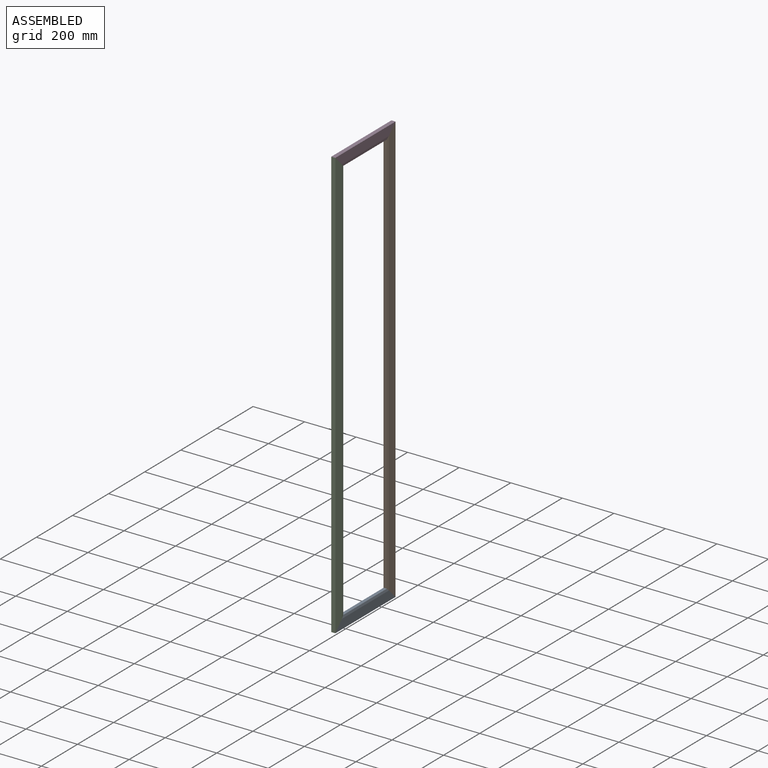
[diagram: assembled view]
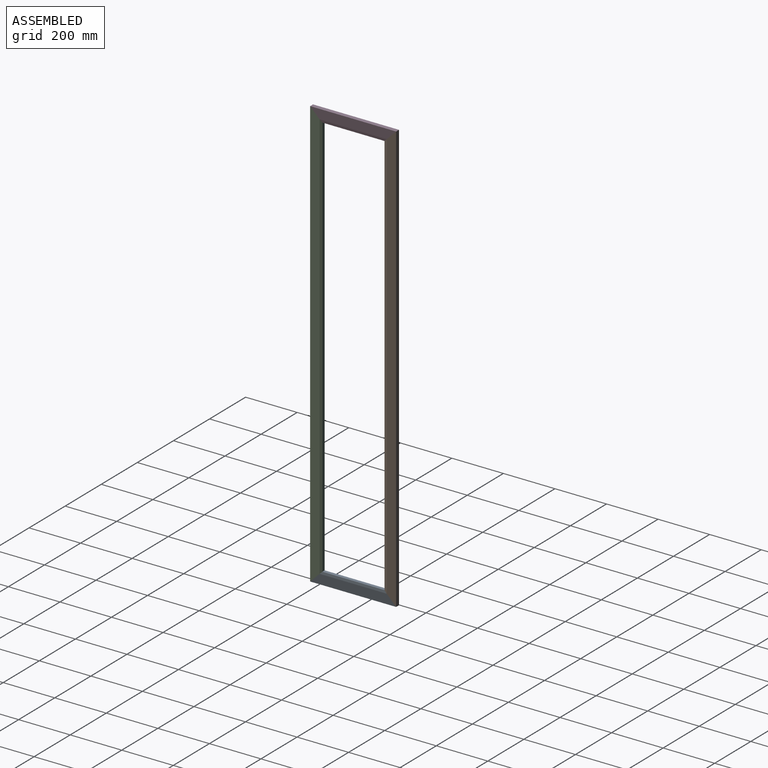
[diagram: assembled view, second angle]
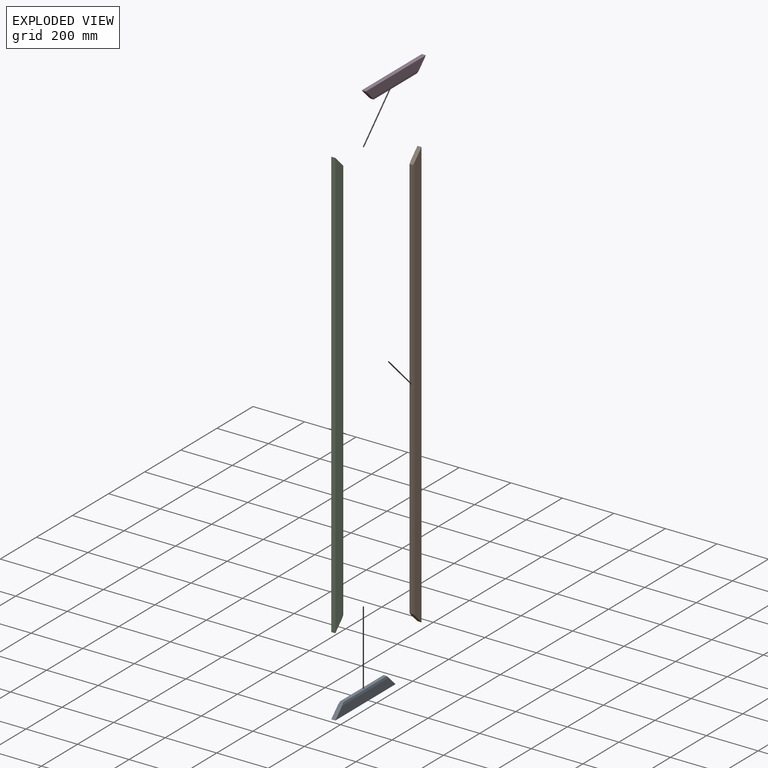
[diagram: exploded view]
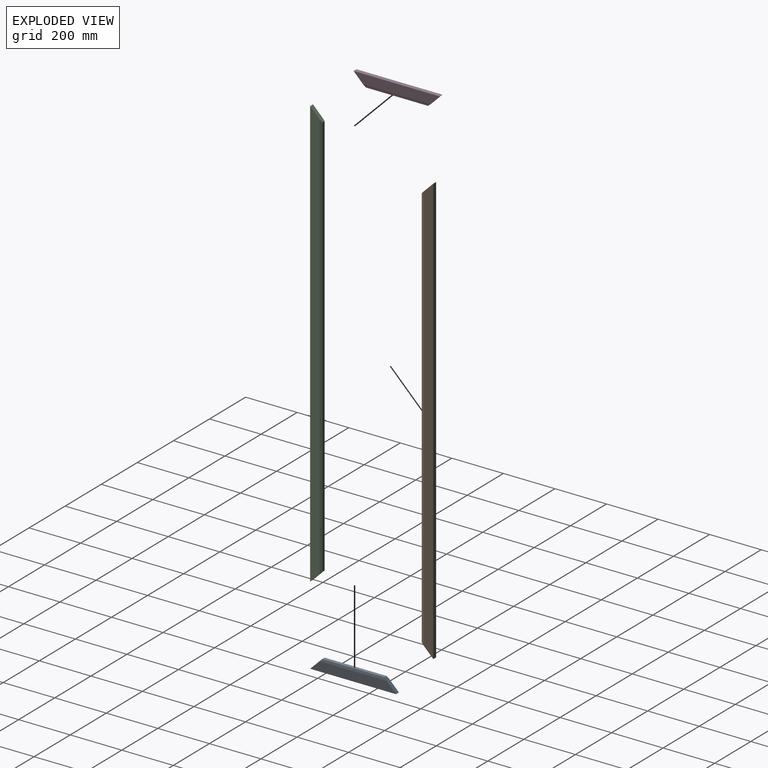
[diagram: exploded view, second angle]
ASSEMBLY  parts=4 mates=3
PART A: 8 faces, bbox 15.9x333.4x46 mm
  f0: plane 333.38x36.66mm, normal (-1,0,0), area 10878.7mm2, adj f4,f5,f6,f7
  f1: plane 333.38x36.66mm, normal (1,0,0), area 10878.7mm2, adj f2,f5,f6,f7
  f2: plane 260.05x9.37mm, normal (0.99,0,0.17), area 2383mm2, adj f1,f3,f6,f7
  f3: plane 241.3x12.7mm, normal (0,0,1), area 3064.5mm2, adj f2,f4,f6,f7
  f4: plane 260.05x9.37mm, normal (-0.99,0,0.17), area 2383mm2, adj f0,f3,f6,f7
  f5: plane 333.38x15.88mm, normal (0,0,-1), area 5292.3mm2, adj f0,f1,f6,f7
  f6: plane 46.04x46.04mm, normal (0,-0.71,0.71), area 1012.5mm2, adj f0,f1,f2,f3,f4,f5
  f7: plane 46.04x46.04mm, normal (0,0.71,0.71), area 1012.5mm2, adj f0,f1,f2,f3,f4,f5
PART B: 8 faces, bbox 15.9x1666.9x46 mm
  f0: plane 1666.88x36.66mm, normal (-1,0,0), area 59770.8mm2, adj f4,f5,f6,f7
  f1: plane 1666.88x36.66mm, normal (1,0,0), area 59770.8mm2, adj f2,f5,f6,f7
  f2: plane 1593.55x9.37mm, normal (0.99,0,0.17), area 15060mm2, adj f1,f3,f6,f7
  f3: plane 1574.8x12.7mm, normal (0,0,1), area 20000mm2, adj f2,f4,f6,f7
  f4: plane 1593.55x9.37mm, normal (-0.99,0,0.17), area 15060mm2, adj f0,f3,f6,f7
  f5: plane 1666.88x15.88mm, normal (0,0,-1), area 26461.6mm2, adj f0,f1,f6,f7
  f6: plane 46.04x46.04mm, normal (0,0.71,0.71), area 1012.5mm2, adj f0,f1,f2,f3,f4,f5
  f7: plane 46.04x46.04mm, normal (0,-0.71,0.71), area 1012.5mm2, adj f0,f1,f2,f3,f4,f5
PART C: same geometry as B
PART D: same geometry as A
PLACE A rot(axis=(-1,0,0),0deg) t=(-7.62,104.51,-1642.42)mm
PLACE B rot(axis=(1,0,0),90deg) t=(-7.62,104.51,-1642.42)mm
PLACE C rot(axis=(-1,0,0),90deg) t=(-7.62,-228.86,24.46)mm
PLACE D rot(axis=(1,0,0),180deg) t=(-7.62,-228.86,24.46)mm fixed
MATE fastened D.f6 <-> B.f6  axis (0,0.71,-0.71) through (-7.62,81.91,1.85)mm
MATE fastened A.f6 <-> C.f6  axis (0,-0.71,0.71) through (-7.62,-206.25,-1619.81)mm
MATE fastened D.f7 <-> C.f7  axis (0,-0.71,-0.71) through (-7.62,-206.25,1.85)mm
